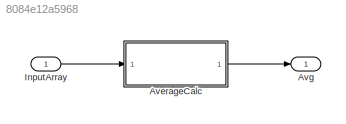
MODEL slx_8084e12a5968
KIND model
CONFIG AbsTol = auto
CONFIG EnableMultiTasking = off
CONFIG FixedStep = auto
CONFIG MaxStep = auto
CONFIG MinStep = auto
CONFIG RelTol = 1e-3
CONFIG SampleTimeConstraint = Unconstrained
CONFIG SolverName = VariableStepAuto
CONFIG StartTime = 0.0
CONFIG StopTime = 10.0
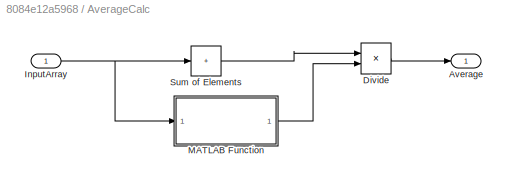
BLOCK [SubSystem] AverageCalc
  Ports = [1, 1]
  RequestExecContextInheritance = off
BLOCK [Outport] AverageCalc/Average
BLOCK [Product] AverageCalc/Divide
  Inputs = */
  Ports = [2, 1]
BLOCK [Inport] AverageCalc/InputArray
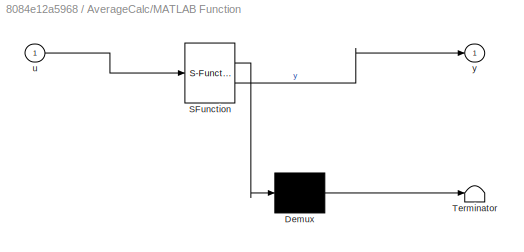
BLOCK [SubSystem] AverageCalc/MATLAB Function
  ErrorFcn = Stateflow.Translate.translate
  PermitHierarchicalResolution = ExplicitOnly
  Ports = [1, 1]
  RequestExecContextInheritance = off
  SFBlockType = MATLAB Function
  TreatAsAtomicUnit = on
BLOCK [Demux] AverageCalc/MATLAB Function/ Demux 
  Outputs = 1
  Ports = [1, 1]
BLOCK [S-Function] AverageCalc/MATLAB Function/ SFunction 
  EnableBusSupport = on
  FunctionName = sf_sfun
  PortCounts = [1 2]
  Ports = [1, 2]
  SFcnIsStateOwnerBlock = off
  SFunctionDeploymentMode = off
  Tag = Stateflow S-Function 2
BLOCK [Terminator] AverageCalc/MATLAB Function/ Terminator 
BLOCK [Inport] AverageCalc/MATLAB Function/u
BLOCK [Outport] AverageCalc/MATLAB Function/y
BLOCK [Sum] AverageCalc/Sum of Elements
  IconShape = rectangular
  Inputs = +
  Ports = [1, 1]
BLOCK [Outport] Avg
BLOCK [Inport] InputArray
  PortDimensions = 5
LINE AverageCalc/Divide:1 -> AverageCalc/Average:1
NET AverageCalc/InputArray:1 -> AverageCalc/MATLAB Function:1, AverageCalc/Sum of Elements:1
LINE AverageCalc/MATLAB Function:1 -> AverageCalc/Divide:2
LINE AverageCalc/Sum of Elements:1 -> AverageCalc/Divide:1
LINE AverageCalc:1 -> Avg:1
LINE InputArray:1 -> AverageCalc:1
note: NET lines group one-source signal fan-out (src -> all destinations, sorted); 1:1 wires keep LINE
CHART AverageCalc/MATLAB Function states=1 transitions=1
  STATE_LABEL 'eML_blk_kernel()'
  STATE_LABEL 'SCRIPT:\nfunction y = count_ArrElements(u)\n    y = numel(u);\nend\n'
CHART  states=0 transitions=0
